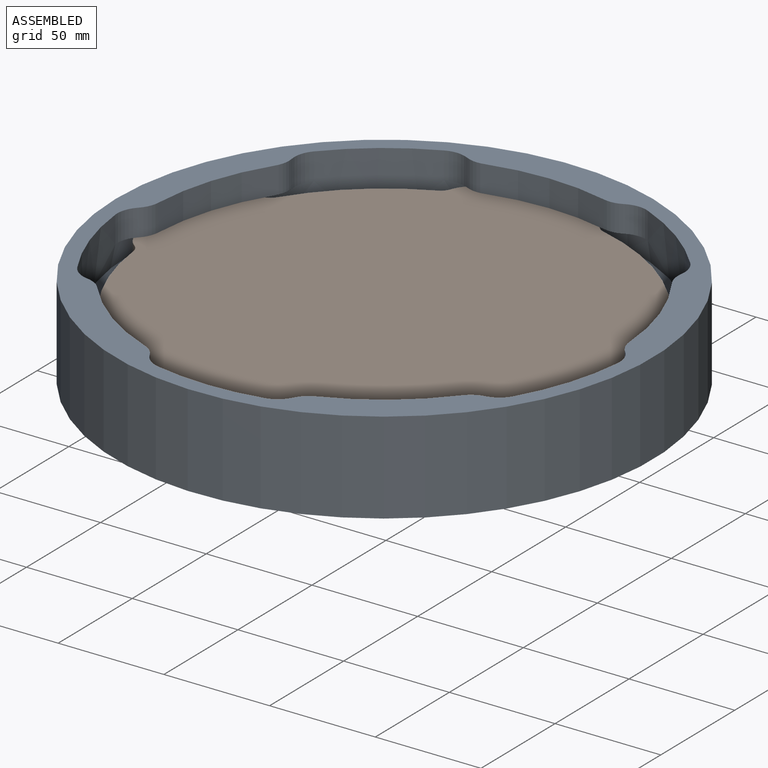
[diagram: assembled view]
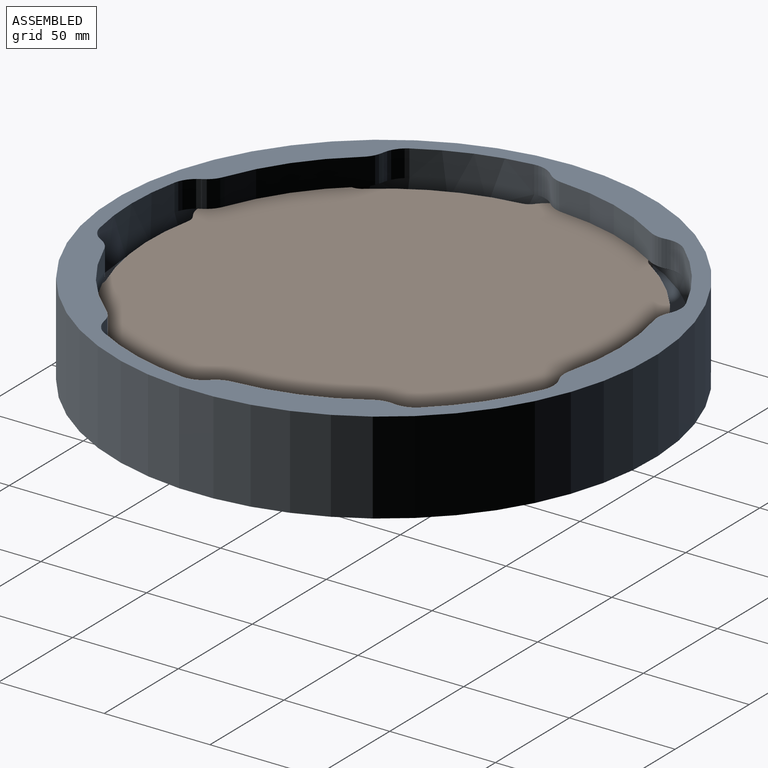
[diagram: assembled view, second angle]
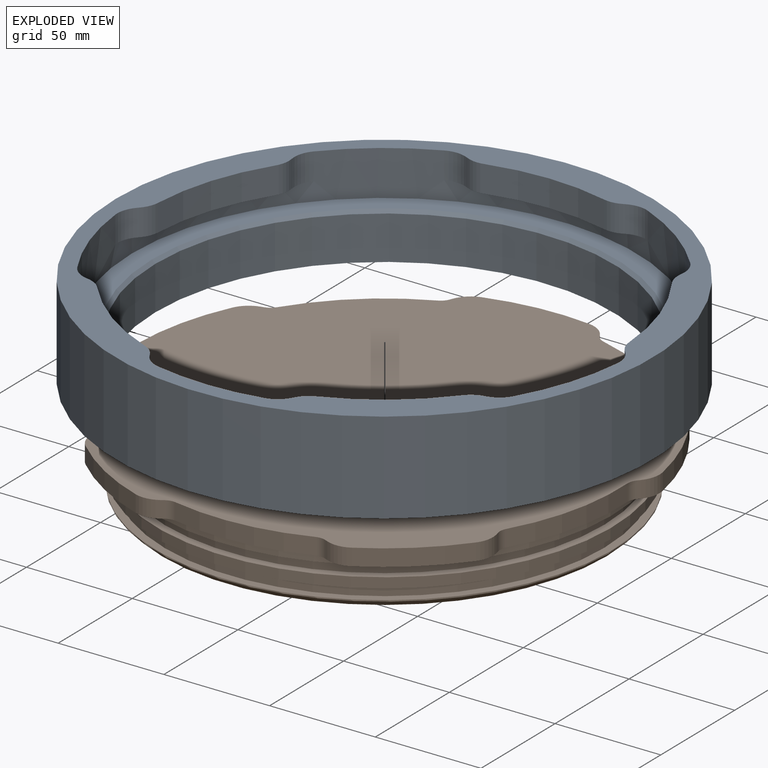
[diagram: exploded view]
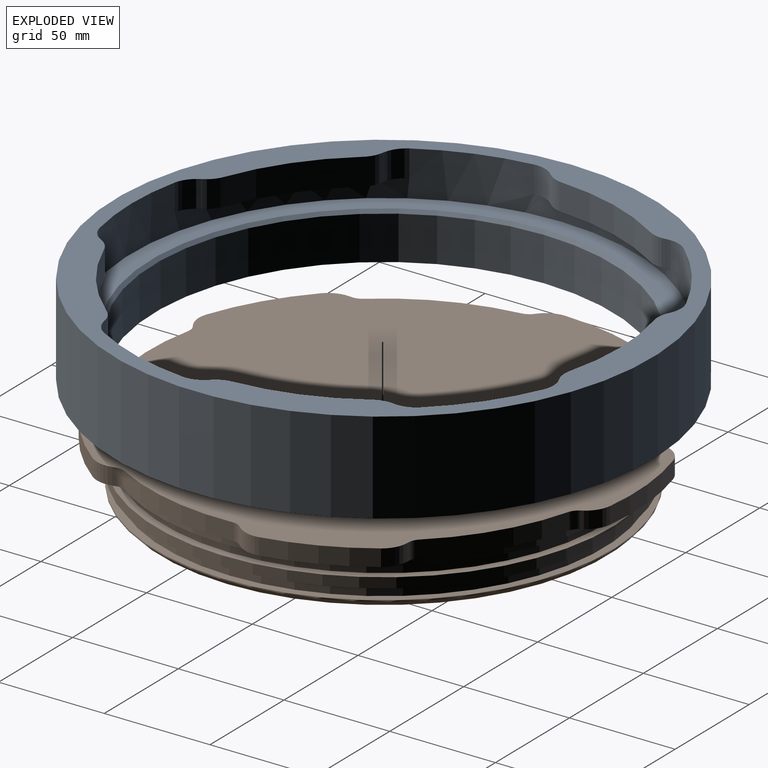
[diagram: exploded view, second angle]
ASSEMBLY  parts=2 mates=2
PART A: 47 faces, bbox 254x254x43.6 mm
  f0: plane 254x254mm, normal (0,0,1), area 8910.3mm2, adj f1,f2,f3,f4,f12,f13,f14,f16
  f1: cylinder r=111.57mm len=45.61mm, axis (0,0,-1), area 723.8mm2, adj f0,f6,f38,f39
  f2: cylinder r=111.57mm len=53.62mm, axis (0,0,-1), area 723.8mm2, adj f0,f7,f36,f37
  f3: cylinder r=111.57mm len=56.37mm, axis (0,0,-1), area 723.8mm2, adj f0,f8,f40,f41
  f4: cylinder r=111.57mm len=53.62mm, axis (0,0,-1), area 723.8mm2, adj f0,f9,f42,f43
  f5: plane 77.84x56.56mm, normal (0,0,-1), area 602.4mm2, adj f13,f14,f16,f21,f30,f35,f44,f45
  f6: plane 77.84x56.56mm, normal (0,0,-1), area 602.4mm2, adj f1,f14,f22,f23,f28,f29,f38,f39
  f7: plane 91.51x30.34mm, normal (0,0,-1), area 602.4mm2, adj f2,f14,f24,f25,f26,f27,f36,f37
  f8: plane 96.22x11.84mm, normal (0,0,-1), area 602.4mm2, adj f3,f14,f19,f20,f31,f32,f40,f41
  f9: plane 91.51x30.34mm, normal (0,0,-1), area 602.4mm2, adj f4,f14,f17,f18,f33,f34,f42,f43
  f10: cylinder r=108.33mm len=216.66mm, axis (0,0,-1), area 14090.4mm2, adj f11,f46
  f11: plane 254x254mm, normal (0,0,-1), area 13802.3mm2, adj f10,f12
  f12: cylinder r=127mm len=254mm, axis (0,0,-1), area 34760.1mm2, adj f0,f11
  f13: cylinder r=111.57mm len=45.61mm, axis (0,0,-1), area 723.8mm2, adj f0,f5,f44,f45
  f14: cylinder r=119.38mm len=238.76mm, axis (0,0,-1), area 9715.1mm2, adj f0,f5,f6,f7,f8,f9,f15,f26
  f15: plane 238.76x238.76mm, normal (0,0,1), area 6859.6mm2, adj f14,f46
  f16: plane 12.7x0.5mm, normal (-0.17,0.98,0), area 6.5mm2, adj f0,f5,f35,f44
  f17: plane 12.7x0.37mm, normal (-0.72,-0.69,0), area 6.5mm2, adj f0,f9,f34,f42
  f18: plane 12.7x0.51mm, normal (-0.99,0.14,0), area 6.5mm2, adj f0,f9,f33,f43
  f19: plane 12.7x0.46mm, normal (0.44,-0.9,0), area 6.5mm2, adj f0,f8,f32,f40
  f20: plane 12.7x0.46mm, normal (-0.44,-0.9,0), area 6.5mm2, adj f0,f8,f31,f41
  f21: plane 12.7x0.45mm, normal (-0.88,0.47,0), area 6.5mm2, adj f0,f5,f30,f45
  f22: plane 12.7x0.45mm, normal (0.88,0.47,0), area 6.5mm2, adj f0,f6,f29,f38
  f23: plane 12.7x0.5mm, normal (0.17,0.98,0), area 6.5mm2, adj f0,f6,f28,f39
  f24: plane 12.7x0.51mm, normal (0.99,0.14,0), area 6.5mm2, adj f0,f7,f27,f36
  f25: plane 12.7x0.37mm, normal (0.72,-0.69,0), area 6.5mm2, adj f0,f7,f26,f37
  f26: cylinder r=12.7mm len=12.7mm, axis (0,0,-1), area 140.1mm2, adj f0,f7,f14,f25
  f27: cylinder r=12.7mm len=12.7mm, axis (0,0,-1), area 140.1mm2, adj f0,f7,f14,f24
  f28: cylinder r=12.7mm len=12.7mm, axis (0,0,-1), area 140.1mm2, adj f0,f6,f14,f23
  f29: cylinder r=12.7mm len=12.7mm, axis (0,0,-1), area 140.1mm2, adj f0,f6,f14,f22
  f30: cylinder r=12.7mm len=12.7mm, axis (0,0,-1), area 140.1mm2, adj f0,f5,f14,f21
  f31: cylinder r=12.7mm len=12.7mm, axis (0,0,-1), area 140.1mm2, adj f0,f8,f14,f20
  f32: cylinder r=12.7mm len=12.7mm, axis (0,0,-1), area 140.1mm2, adj f0,f8,f14,f19
  f33: cylinder r=12.7mm len=12.7mm, axis (0,0,-1), area 140.1mm2, adj f0,f9,f14,f18
  f34: cylinder r=12.7mm len=12.7mm, axis (0,0,-1), area 140.1mm2, adj f0,f9,f14,f17
  f35: cylinder r=12.7mm len=12.7mm, axis (0,0,-1), area 140.1mm2, adj f0,f5,f14,f16
  f36: cylinder r=12.7mm len=12.7mm, axis (0,0,-1), area 114.4mm2, adj f0,f2,f7,f24
  f37: cylinder r=12.7mm len=12.7mm, axis (0,0,-1), area 114.4mm2, adj f0,f2,f7,f25
  f38: cylinder r=12.7mm len=12.7mm, axis (0,0,-1), area 114.4mm2, adj f0,f1,f6,f22
  f39: cylinder r=12.7mm len=12.7mm, axis (0,0,-1), area 114.4mm2, adj f0,f1,f6,f23
  f40: cylinder r=12.7mm len=12.7mm, axis (0,0,-1), area 114.4mm2, adj f0,f3,f8,f19
  f41: cylinder r=12.7mm len=12.7mm, axis (0,0,-1), area 114.4mm2, adj f0,f3,f8,f20
  f42: cylinder r=12.7mm len=12.7mm, axis (0,0,-1), area 114.4mm2, adj f0,f4,f9,f17
  f43: cylinder r=12.7mm len=12.7mm, axis (0,0,-1), area 114.4mm2, adj f0,f4,f9,f18
  f44: cylinder r=12.7mm len=12.7mm, axis (0,0,-1), area 114.4mm2, adj f0,f5,f13,f16
  f45: cylinder r=12.7mm len=12.7mm, axis (0,0,-1), area 114.4mm2, adj f0,f5,f13,f21
  f46: cone r=109.85mm half-angle=45deg, axis (0,0,1), area 1477.3mm2, adj f10,f15
PART B: 55 faces, bbox 235.3x229.2x30.2 mm
  f0: cylinder r=118.26mm len=39.21mm, axis (0,0,-1), area 387.4mm2, adj f16,f18,f51,f52
  f1: cylinder r=118.26mm len=39.21mm, axis (0,0,-1), area 387.4mm2, adj f16,f18,f45,f46
  f2: cylinder r=118.26mm len=46.09mm, axis (0,0,-1), area 387.4mm2, adj f16,f18,f47,f48
  f3: cylinder r=118.26mm len=48.47mm, axis (0,0,-1), area 387.4mm2, adj f16,f18,f49,f50
  f4: plane 193.68x193.68mm, normal (0,0,-1), area 29460.3mm2, adj f5
  f5: cylinder r=96.84mm len=193.68mm, axis (0,0,-1), area 13522.8mm2, adj f4,f6
  f6: plane 210.82x210.82mm, normal (0,0,-1), area 5446.8mm2, adj f5,f19
  f7: cylinder r=107.95mm len=215.9mm, axis (0,0,-1), area 430.7mm2, adj f8,f19
  f8: plane 215.9x215.9mm, normal (0,0,1), area 2538.6mm2, adj f7,f9
  f9: cylinder r=104.14mm len=208.28mm, axis (0,0,-1), area 3324mm2, adj f8,f10
  f10: plane 215.9x215.9mm, normal (0,0,-1), area 2538.6mm2, adj f9,f11
  f11: cylinder r=107.95mm len=215.9mm, axis (0,0,-1), area 3230.3mm2, adj f10,f12
  f12: plane 215.9x215.9mm, normal (0,0,1), area 2538.6mm2, adj f11,f13
  f13: cylinder r=104.14mm len=208.28mm, axis (0,0,-1), area 3324mm2, adj f12,f14
  f14: plane 215.9x215.9mm, normal (0,0,-1), area 2538.6mm2, adj f13,f15
  f15: cylinder r=107.95mm len=215.9mm, axis (0,0,-1), area 2799.6mm2, adj f14,f16
  f16: plane 235.3x229.22mm, normal (0,0,-1), area 4439.5mm2, adj f0,f1,f2,f3,f15,f17,f20,f21
  f17: cylinder r=118.26mm len=46.09mm, axis (0,0,-1), area 387.4mm2, adj f16,f18,f53,f54
  f18: plane 235.3x229.22mm, normal (0,0,1), area 41049.1mm2, adj f0,f1,f2,f3,f17,f20,f21,f22
  f19: cone r=105.41mm half-angle=45deg, axis (0,0,1), area 2407.8mm2, adj f6,f7
  f20: cylinder r=110.96mm len=59.59mm, axis (0,0,1), area 504.2mm2, adj f16,f18,f43,f44
  f21: cylinder r=110.96mm len=50.69mm, axis (0,0,1), area 504.2mm2, adj f16,f18,f41,f42
  f22: cylinder r=110.96mm len=50.69mm, axis (0,0,1), area 504.2mm2, adj f16,f18,f39,f40
  f23: cylinder r=110.96mm len=59.59mm, axis (0,0,1), area 504.2mm2, adj f16,f18,f37,f38
  f24: cylinder r=110.96mm len=62.66mm, axis (0,0,1), area 504.2mm2, adj f16,f18,f35,f36
  f25: plane 7.94x1.18mm, normal (0.71,-0.71,0), area 13.2mm2, adj f16,f18,f44,f53
  f26: plane 7.94x1.65mm, normal (0.99,0.15,0), area 13.2mm2, adj f16,f18,f43,f51
  f27: plane 7.94x1.48mm, normal (0.89,0.46,0), area 13.2mm2, adj f16,f18,f42,f49
  f28: plane 7.94x1.64mm, normal (0.16,0.99,0), area 13.2mm2, adj f16,f18,f41,f54
  f29: plane 7.94x1.64mm, normal (-0.16,0.99,0), area 13.2mm2, adj f16,f18,f40,f47
  f30: plane 7.94x1.48mm, normal (-0.89,0.46,0), area 13.2mm2, adj f16,f18,f39,f50
  f31: plane 7.94x1.65mm, normal (-0.99,0.15,0), area 13.2mm2, adj f16,f18,f38,f45
  f32: plane 7.94x1.18mm, normal (-0.71,-0.71,0), area 13.2mm2, adj f16,f18,f37,f48
  f33: plane 7.94x1.49mm, normal (-0.45,-0.89,0), area 13.2mm2, adj f16,f18,f36,f52
  f34: plane 7.94x1.49mm, normal (0.45,-0.89,0), area 13.2mm2, adj f16,f18,f35,f46
  f35: cylinder r=6.35mm len=7.94mm, axis (0,0,1), area 38.1mm2, adj f16,f18,f24,f34
  f36: cylinder r=6.35mm len=7.94mm, axis (0,0,1), area 38.1mm2, adj f16,f18,f24,f33
  f37: cylinder r=6.35mm len=7.94mm, axis (0,0,1), area 38.1mm2, adj f16,f18,f23,f32
  f38: cylinder r=6.35mm len=7.94mm, axis (0,0,1), area 38.1mm2, adj f16,f18,f23,f31
  f39: cylinder r=6.35mm len=7.94mm, axis (0,0,1), area 38.1mm2, adj f16,f18,f22,f30
  f40: cylinder r=6.35mm len=7.94mm, axis (0,0,1), area 38.1mm2, adj f16,f18,f22,f29
  f41: cylinder r=6.35mm len=7.94mm, axis (0,0,1), area 38.1mm2, adj f16,f18,f21,f28
  f42: cylinder r=6.35mm len=7.94mm, axis (0,0,1), area 38.1mm2, adj f16,f18,f21,f27
  f43: cylinder r=6.35mm len=7.94mm, axis (0,0,1), area 38.1mm2, adj f16,f18,f20,f26
  f44: cylinder r=6.35mm len=7.94mm, axis (0,0,1), area 38.1mm2, adj f16,f18,f20,f25
  f45: cylinder r=12.7mm len=10.5mm, axis (0,0,-1), area 89.9mm2, adj f1,f16,f18,f31
  f46: cylinder r=12.7mm len=10.95mm, axis (0,0,-1), area 89.9mm2, adj f1,f16,f18,f34
  f47: cylinder r=12.7mm len=9.01mm, axis (0,0,-1), area 89.9mm2, adj f2,f16,f18,f29
  f48: cylinder r=12.7mm len=10.33mm, axis (0,0,-1), area 89.9mm2, adj f2,f16,f18,f32
  f49: cylinder r=12.7mm len=8.71mm, axis (0,0,-1), area 89.9mm2, adj f3,f16,f18,f27
  f50: cylinder r=12.7mm len=8.71mm, axis (0,0,-1), area 89.9mm2, adj f3,f16,f18,f30
  f51: cylinder r=12.7mm len=10.5mm, axis (0,0,-1), area 89.9mm2, adj f0,f16,f18,f26
  f52: cylinder r=12.7mm len=10.95mm, axis (0,0,-1), area 89.9mm2, adj f0,f16,f18,f33
  f53: cylinder r=12.7mm len=10.33mm, axis (0,0,-1), area 89.9mm2, adj f16,f17,f18,f25
  f54: cylinder r=12.7mm len=9.01mm, axis (0,0,-1), area 89.9mm2, adj f16,f17,f18,f28
PLACE A t=(29.65,127.95,81.08)mm fixed
PLACE B rot(axis=(0,0,1),148.6deg) t=(29.65,127.95,103.31)mm
MATE planar A.f1 <-> B.f0  axis (0,0,1) through (29.65,127.95,103.31)mm
MATE cylindrical A.f1 <-> B.f0  axis (0,0,1) through (29.65,127.95,103.31)mm
